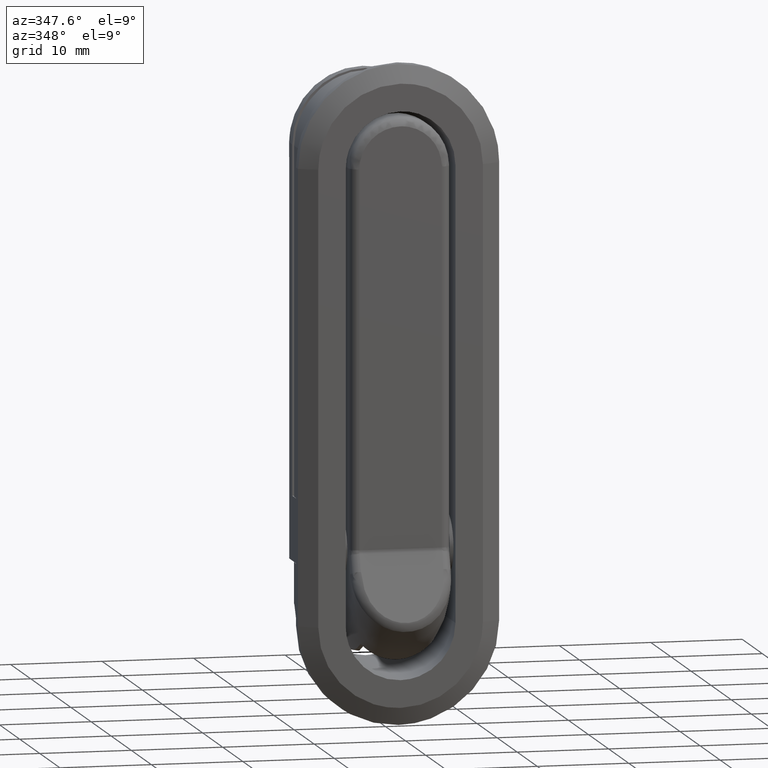
[diagram: clean part render]
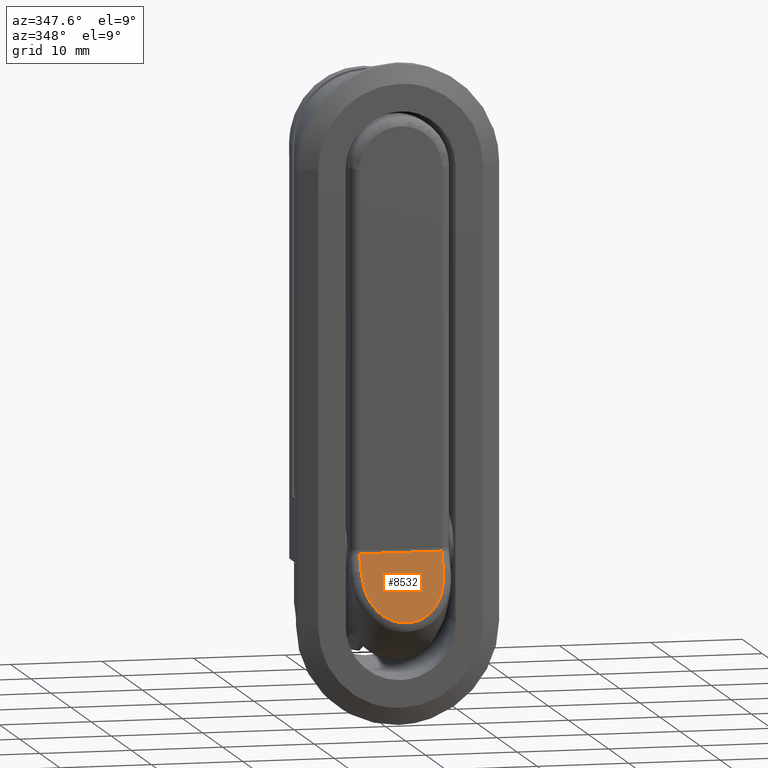
[diagram: same view with one face highlighted and labeled with its STEP entity id]
A machine part, auxiliary view. The second image highlights one B-rep face of the part: STEP entity #8532.
In plain terms, the highlighted face is a freeform B-spline surface patch.
Its self-contained STEP definition (entity closure, byte-faithful):
#8433=CARTESIAN_POINT('',(4.949549982554785,-7.428030272219365,0.180938508836654));
#8434=CARTESIAN_POINT('',(4.949549982554785,-10.571969853648399,-7.723213328252489));
#8435=CARTESIAN_POINT('',(-4.949550223956901,-7.428030272219365,0.180938508836654));
#8436=CARTESIAN_POINT('',(-4.949550223956901,-10.571969853648399,-7.723213328252489));
#8437=B_SPLINE_SURFACE_WITH_KNOTS('',1,1,((#8433,#8435),(#8434,#8436)),.UNSPECIFIED.,.F.,.F.,.U.,(2,2),(2,2),(0.0,8.506466502340194),(0.0,9.899100206511687),.UNSPECIFIED.);
#8438=CARTESIAN_POINT('',(4.499999999998184,-8.302438370188211,-2.017403474180890));
#8439=VERTEX_POINT('',#8438);
#8440=CARTESIAN_POINT('',(4.499999999998514,-7.570806681640870,-0.178014451165523));
#8441=VERTEX_POINT('',#8440);
#8442=CARTESIAN_POINT('',(4.499999999998184,-8.302438370188211,-2.017403474180890));
#8443=CARTESIAN_POINT('',(4.499999999998514,-7.570806681640870,-0.178014451165523));
#8444=QUASI_UNIFORM_CURVE('',1,(#8442,#8443),.UNSPECIFIED.,.F.,.U.);
#8445=EDGE_CURVE('',#8439,#8441,#8444,.T.);
#8446=ORIENTED_EDGE('',*,*,#8445,.T.);
#8447=CARTESIAN_POINT('',(-4.500000000001760,-7.570806681640870,-0.178014451165523));
#8448=VERTEX_POINT('',#8447);
#8449=CARTESIAN_POINT('',(4.499999999998514,-7.570806681640870,-0.178014451165523));
#8450=CARTESIAN_POINT('',(-4.500000000001760,-7.570806681640870,-0.178014451165523));
#8451=QUASI_UNIFORM_CURVE('',1,(#8449,#8450),.UNSPECIFIED.,.F.,.U.);
#8452=EDGE_CURVE('',#8441,#8448,#8451,.T.);
#8453=ORIENTED_EDGE('',*,*,#8452,.T.);
#8454=CARTESIAN_POINT('',(-4.500000000001820,-8.302438370187922,-2.017403474180165));
#8455=VERTEX_POINT('',#8454);
#8456=CARTESIAN_POINT('',(-4.500000000001760,-7.570806681640870,-0.178014451165523));
#8457=CARTESIAN_POINT('',(-4.500000000001820,-8.302438370187922,-2.017403474180165));
#8458=QUASI_UNIFORM_CURVE('',1,(#8456,#8457),.UNSPECIFIED.,.F.,.U.);
#8459=EDGE_CURVE('',#8448,#8455,#8458,.T.);
#8460=ORIENTED_EDGE('',*,*,#8459,.T.);
#8461=CARTESIAN_POINT('',(-4.500000000001820,-8.302438370187922,-2.017403474180165));
#8462=CARTESIAN_POINT('',(-4.500000000001850,-8.365648377751407,-2.176319218094767));
#8463=CARTESIAN_POINT('',(-4.496032217118710,-8.428788474295700,-2.335059199308959));
#8464=CARTESIAN_POINT('',(-4.478769069319993,-8.554904318480721,-2.652125973552752));
#8465=CARTESIAN_POINT('',(-4.465447693821841,-8.617972841058736,-2.810686011265348));
#8466=CARTESIAN_POINT('',(-4.409584887159117,-8.806258014010020,-3.284052167685910));
#8467=CARTESIAN_POINT('',(-4.351453398918540,-8.929799953019925,-3.594647908758902));
#8468=CARTESIAN_POINT('',(-4.185164113710008,-9.172138525676576,-4.203909258937596));
#8469=CARTESIAN_POINT('',(-4.077149177635830,-9.290948710564328,-4.502608937103340));
#8470=CARTESIAN_POINT('',(-3.904050588815421,-9.435849325426320,-4.866902343987496));
#8471=CARTESIAN_POINT('',(-3.867604334488563,-9.464562823622341,-4.939090706275359));
#8472=CARTESIAN_POINT('',(-3.791425069664295,-9.521081775431021,-5.081184523665420));
#8473=CARTESIAN_POINT('',(-3.751628713234635,-9.548941148945644,-5.151225538335826));
#8474=CARTESIAN_POINT('',(-3.627007340763090,-9.631292675742904,-5.358264813411775));
#8475=CARTESIAN_POINT('',(-3.536962074967943,-9.684561060929605,-5.492186408826425));
#8476=CARTESIAN_POINT('',(-3.342100506397602,-9.787635099699266,-5.751323975499091));
#8477=CARTESIAN_POINT('',(-3.237263941762571,-9.837453654359718,-5.876572381246625));
#8478=CARTESIAN_POINT('',(-3.011633224745252,-9.933278883673575,-6.117485777545523));
#8479=CARTESIAN_POINT('',(-2.892662621689605,-9.978510136112258,-6.231201285683421));
#8480=CARTESIAN_POINT('',(-2.642229346361793,-10.063530816189781,-6.444951056383491));
#8481=CARTESIAN_POINT('',(-2.510769859849011,-10.103321631616680,-6.544988807971836));
#8482=CARTESIAN_POINT('',(-2.303773303166369,-10.158735563762400,-6.684304504799218));
#8483=CARTESIAN_POINT('',(-2.233136447040684,-10.176493323337271,-6.728949137538140));
#8484=CARTESIAN_POINT('',(-2.088464292230584,-10.210528404884840,-6.814516447396370));
#8485=CARTESIAN_POINT('',(-2.014404125003320,-10.226801312673739,-6.855428026853615));
#8486=CARTESIAN_POINT('',(-1.789945508521669,-10.272724326659390,-6.970882686829742));
#8487=CARTESIAN_POINT('',(-1.636340777370309,-10.299718582991989,-7.038748717730129));
#8488=CARTESIAN_POINT('',(-1.321169824829301,-10.346437362321490,-7.156204004608101));
#8489=CARTESIAN_POINT('',(-1.159605294087350,-10.366163429069299,-7.205797141716797));
#8490=CARTESIAN_POINT('',(-0.911021288700228,-10.390057257724830,-7.265868413689799));
#8491=CARTESIAN_POINT('',(-0.826852976646701,-10.397083865729920,-7.283533949280868));
#8492=CARTESIAN_POINT('',(-0.658637286862763,-10.409017217170220,-7.313535486927040));
#8493=CARTESIAN_POINT('',(-0.574396257384219,-10.413949173465790,-7.325934876420499));
#8494=CARTESIAN_POINT('',(-0.321280271677164,-10.425692598754789,-7.355458922340486));
#8495=CARTESIAN_POINT('',(-0.152013792866942,-10.429462304201239,-7.364936306831550));
#8496=CARTESIAN_POINT('',(0.102668558039816,-10.429036539797931,-7.363865896156194));
#8497=CARTESIAN_POINT('',(0.187693457537842,-10.427878560641020,-7.360954630578949));
#8498=CARTESIAN_POINT('',(0.358008889190025,-10.423498885525079,-7.349943726515133));
#8499=CARTESIAN_POINT('',(0.443528529592186,-10.420265268312940,-7.341814116907249));
#8500=CARTESIAN_POINT('',(0.698932615462261,-10.407467296626301,-7.309638844832843));
#8501=CARTESIAN_POINT('',(0.865707456662271,-10.394940719325120,-7.278145883081159));
#8502=CARTESIAN_POINT('',(1.192647303190846,-10.362331905257239,-7.196164340197066));
#8503=CARTESIAN_POINT('',(1.352810447418478,-10.342247541078430,-7.145670410555916));
#8504=CARTESIAN_POINT('',(1.588162327946738,-10.306528026702660,-7.055868282410426));
#8505=CARTESIAN_POINT('',(1.665795407715846,-10.293686989283060,-7.023584739142028));
#8506=CARTESIAN_POINT('',(1.819413229578747,-10.266120710599591,-6.954280591700807));
#8507=CARTESIAN_POINT('',(1.895684201908528,-10.251333674958490,-6.917104630808287));
#8508=CARTESIAN_POINT('',(2.268942022813929,-10.173438355954209,-6.721268669950390));
#8509=CARTESIAN_POINT('',(2.540535324427936,-10.099072638162969,-6.534306449566707));
#8510=CARTESIAN_POINT('',(2.911836120642245,-9.971426047180266,-6.213391237781527));
#8511=CARTESIAN_POINT('',(3.029523958307960,-9.926165528303912,-6.099602151140902));
#8512=CARTESIAN_POINT('',(3.197019778739991,-9.854244158995728,-5.918785246547317));
#8513=CARTESIAN_POINT('',(3.251333836298866,-9.829590169415731,-5.856802860441241));
#8514=CARTESIAN_POINT('',(3.355647918717839,-9.779587988055930,-5.731092800366264));
#8515=CARTESIAN_POINT('',(3.405832844329030,-9.754163190550775,-5.667172532592966));
#8516=CARTESIAN_POINT('',(3.647322457772263,-9.625012100713503,-5.342474872997579));
#8517=CARTESIAN_POINT('',(3.810540104995592,-9.515251339196389,-5.066526273377389));
#8518=CARTESIAN_POINT('',(3.981256370530150,-9.370894674908458,-4.703600408018080));
#8519=CARTESIAN_POINT('',(4.013764080672128,-9.341622380489179,-4.630007180884629));
#8520=CARTESIAN_POINT('',(4.075304975470965,-9.282547346509473,-4.481487138987217));
#8521=CARTESIAN_POINT('',(4.104190963904292,-9.252892350428198,-4.406931764851117));
#8522=CARTESIAN_POINT('',(4.185539886472127,-9.163596391052709,-4.182433550727813));
#8523=CARTESIAN_POINT('',(4.232703481352603,-9.103625061551574,-4.031660139861686));
#8524=CARTESIAN_POINT('',(4.436997634282519,-8.801803186905570,-3.272852324645168));
#8525=CARTESIAN_POINT('',(4.499999999998069,-8.554084594372904,-2.650065112125599));
#8526=CARTESIAN_POINT('',(4.499999999998184,-8.302438370188202,-2.017403474180894));
#8527=B_SPLINE_CURVE_WITH_KNOTS('',3,(#8461,#8462,#8463,#8464,#8465,#8466,#8467,#8468,#8469,#8470,#8471,#8472,#8473,#8474,#8475,#8476,#8477,#8478,#8479,#8480,#8481,#8482,#8483,#8484,#8485,#8486,#8487,#8488,#8489,#8490,#8491,#8492,#8493,#8494,#8495,#8496,#8497,#8498,#8499,#8500,#8501,#8502,#8503,#8504,#8505,#8506,#8507,#8508,#8509,#8510,#8511,#8512,#8513,#8514,#8515,#8516,#8517,#8518,#8519,#8520,#8521,#8522,#8523,#8524,#8525,#8526),.UNSPECIFIED.,.F.,.U.,(4,2,2,2,2,2,2,2,2,2,2,2,2,2,2,2,2,2,2,2,2,2,2,2,2,2,2,2,2,2,2,2,4),(0.0,0.031250000000000,0.062500000000000,0.125000000000000,0.187499999999999,0.203124999999999,0.218749999999999,0.249999999999999,0.281249999999999,0.312499999999999,0.343749999999999,0.359374999999999,0.374999999999999,0.406249999999999,0.437499999999999,0.453124999999999,0.468749999999999,0.499999999999999,0.515624999999998,0.531249999999999,0.562499999999998,0.593749999999998,0.609374999999998,0.624999999999998,0.687499999999998,0.718749999999998,0.734374999999999,0.749999999999999,0.812499999999999,0.828124999999999,0.843749999999999,0.874999999999999,1.0),.UNSPECIFIED.);
#8528=EDGE_CURVE('',#8455,#8439,#8527,.T.);
#8529=ORIENTED_EDGE('',*,*,#8528,.T.);
#8530=EDGE_LOOP('',(#8446,#8453,#8460,#8529));
#8531=FACE_OUTER_BOUND('',#8530,.T.);
#8532=ADVANCED_FACE('',(#8531),#8437,.F.);